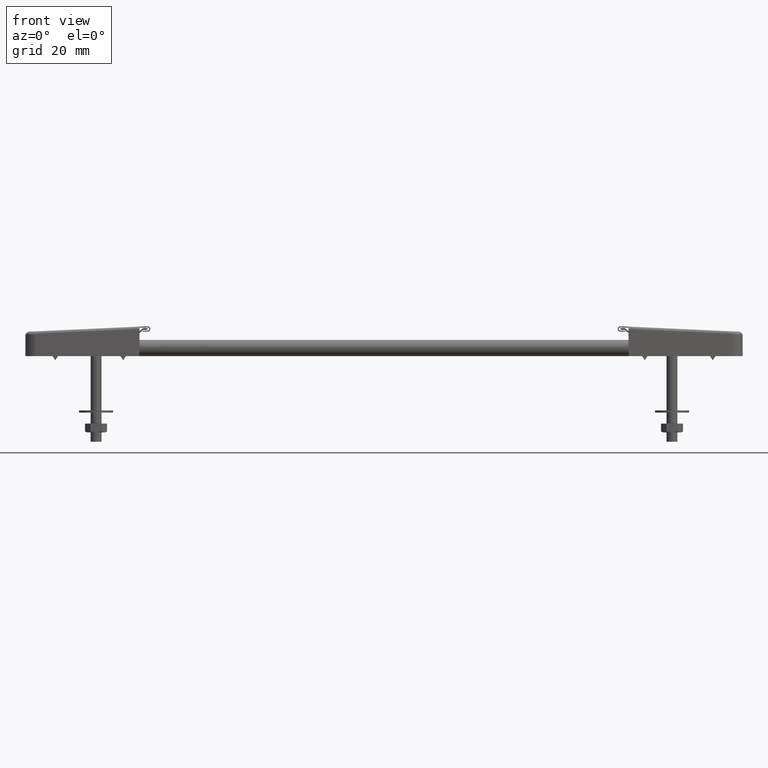
[diagram: clean part render]
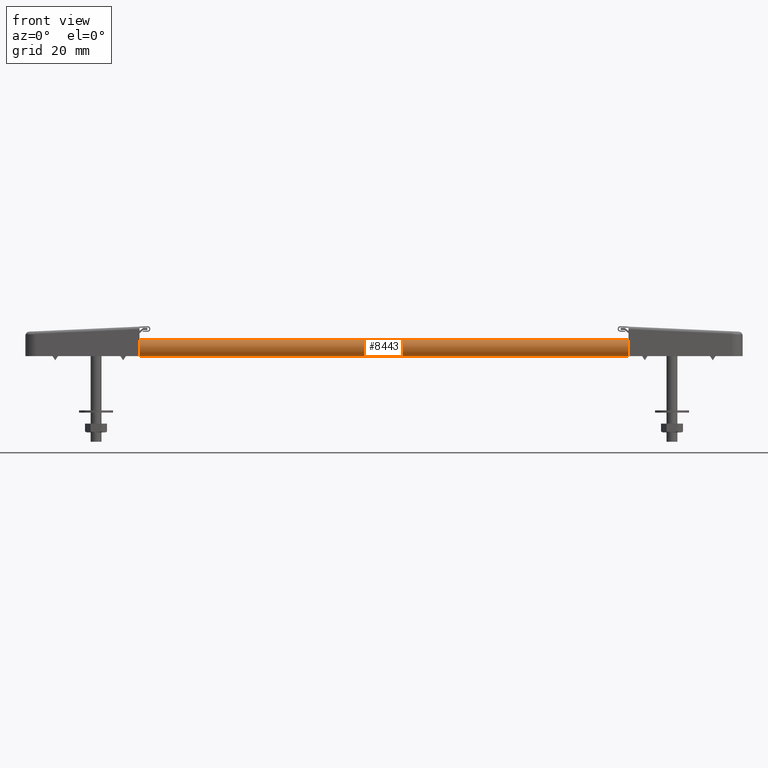
[diagram: same view with one face highlighted and labeled with its STEP entity id]
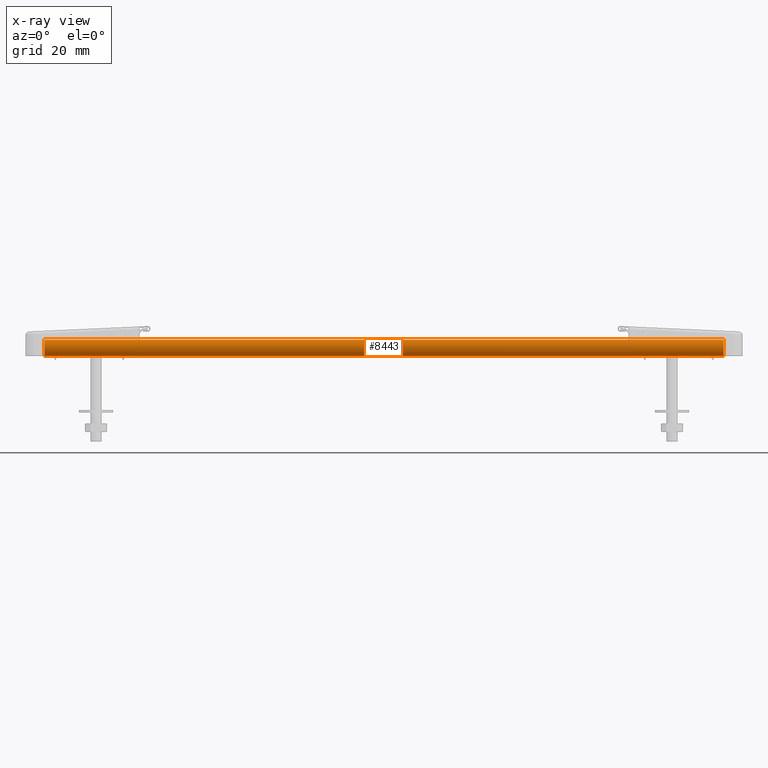
[diagram: x-ray of the same camera — body ghosted, the highlighted face saturated]
A machine part, front view. The second image highlights one B-rep face of the part: STEP entity #8443.
The next image is the same camera in x-ray: the body ghosted, the highlighted face saturated — about 0% of this face is hidden behind the body in this view.
In plain terms, the highlighted face is a freeform B-spline surface patch.
Its self-contained STEP definition (entity closure, byte-faithful):
#8230=CARTESIAN_POINT('',(125.0,-9.500000000000000,6.0));
#8231=VERTEX_POINT('',#8230);
#8237=CARTESIAN_POINT('',(125.0,-12.499999999994619,2.999994317854533));
#8238=VERTEX_POINT('',#8237);
#8239=CARTESIAN_POINT('',(125.0,-9.500000000000000,6.0));
#8240=CARTESIAN_POINT('',(125.0,-9.819092871208982,6.000184407551927));
#8241=CARTESIAN_POINT('',(125.000000000000200,-10.334380617687080,5.916946397580858));
#8242=CARTESIAN_POINT('',(125.000000000000100,-11.078443530533569,5.587185072356928));
#8243=CARTESIAN_POINT('',(124.999999999999600,-11.645636789704300,5.144562803625894));
#8244=CARTESIAN_POINT('',(125.000000000000700,-12.124127207479370,4.515641851488775));
#8245=CARTESIAN_POINT('',(125.000000000000100,-12.426649509174180,3.809919942297323));
#8246=CARTESIAN_POINT('',(124.999999999999010,-12.500083689322230,3.269977002642019));
#8247=CARTESIAN_POINT('',(125.0,-12.499999999994619,2.999994317854533));
#8248=B_SPLINE_CURVE_WITH_KNOTS('',3,(#8239,#8240,#8241,#8242,#8243,#8244,#8245,#8246,#8247),.UNSPECIFIED.,.F.,.U.,(4,1,1,1,1,1,4),(0.000000648695763,0.957224628681463,1.546301262067815,2.429792267620569,3.092550144370457,3.902561094553747,4.712510435729850),.UNSPECIFIED.);
#8249=EDGE_CURVE('',#8231,#8238,#8248,.T.);
#8251=CARTESIAN_POINT('',(125.0,-9.500000000000000,0.0));
#8252=VERTEX_POINT('',#8251);
#8253=CARTESIAN_POINT('',(125.0,-12.499999999994619,2.999994317854533));
#8254=CARTESIAN_POINT('',(124.999999999999900,-12.500183645636440,2.680904753426131));
#8255=CARTESIAN_POINT('',(125.000000000000100,-12.412999024894271,2.141053257060650));
#8256=CARTESIAN_POINT('',(125.0,-12.094177813546640,1.445062401967610));
#8257=CARTESIAN_POINT('',(124.999999999999700,-11.645648896086410,0.855421681210853));
#8258=CARTESIAN_POINT('',(125.000000000000700,-11.078439394641309,0.412816537013331));
#8259=CARTESIAN_POINT('',(124.999999999999200,-10.334383899966790,0.083036307783577));
#8260=CARTESIAN_POINT('',(125.000000000001290,-9.819086080201046,-0.000172531898833));
#8261=CARTESIAN_POINT('',(125.0,-9.500000000000000,0.0));
#8262=B_SPLINE_CURVE_WITH_KNOTS('',3,(#8253,#8254,#8255,#8256,#8257,#8258,#8259,#8260,#8261),.UNSPECIFIED.,.F.,.U.,(4,1,1,1,1,1,4),(0.000000656451484,0.957223333010083,1.619961504824982,2.282714275836194,3.166200602598209,3.755286761619208,4.712504030467768),.UNSPECIFIED.);
#8263=EDGE_CURVE('',#8238,#8252,#8262,.T.);
#8336=CARTESIAN_POINT('',(-125.0,-9.500000000000000,0.0));
#8337=VERTEX_POINT('',#8336);
#8343=CARTESIAN_POINT('',(-125.0,-12.499999999994619,2.999994317854533));
#8344=VERTEX_POINT('',#8343);
#8345=CARTESIAN_POINT('',(-125.0,-12.499999999994619,2.999994317854533));
#8346=CARTESIAN_POINT('',(-124.999999999999900,-12.500183645636440,2.680904753426131));
#8347=CARTESIAN_POINT('',(-125.000000000000100,-12.412999024894271,2.141053257060650));
#8348=CARTESIAN_POINT('',(-125.0,-12.094177813546640,1.445062401967610));
#8349=CARTESIAN_POINT('',(-124.999999999999700,-11.645648896086410,0.855421681210853));
#8350=CARTESIAN_POINT('',(-125.000000000000700,-11.078439394641309,0.412816537013331));
#8351=CARTESIAN_POINT('',(-124.999999999999200,-10.334383899966790,0.083036307783577));
#8352=CARTESIAN_POINT('',(-125.000000000001290,-9.819086080201046,-0.000172531898833));
#8353=CARTESIAN_POINT('',(-125.0,-9.500000000000000,0.0));
#8354=B_SPLINE_CURVE_WITH_KNOTS('',3,(#8345,#8346,#8347,#8348,#8349,#8350,#8351,#8352,#8353),.UNSPECIFIED.,.F.,.U.,(4,1,1,1,1,1,4),(0.000000656451484,0.957223333010083,1.619961504824982,2.282714275836194,3.166200602598209,3.755286761619208,4.712504030467768),.UNSPECIFIED.);
#8355=EDGE_CURVE('',#8344,#8337,#8354,.T.);
#8357=CARTESIAN_POINT('',(-125.0,-9.500000000000000,6.0));
#8358=VERTEX_POINT('',#8357);
#8359=CARTESIAN_POINT('',(-125.0,-9.500000000000000,6.0));
#8360=CARTESIAN_POINT('',(-125.0,-9.819092871208982,6.000184407551927));
#8361=CARTESIAN_POINT('',(-125.000000000000200,-10.334380617687080,5.916946397580858));
#8362=CARTESIAN_POINT('',(-125.000000000000100,-11.078443530533569,5.587185072356928));
#8363=CARTESIAN_POINT('',(-124.999999999999600,-11.645636789704300,5.144562803625894));
#8364=CARTESIAN_POINT('',(-125.000000000000700,-12.124127207479370,4.515641851488775));
#8365=CARTESIAN_POINT('',(-125.000000000000100,-12.426649509174180,3.809919942297323));
#8366=CARTESIAN_POINT('',(-124.999999999999010,-12.500083689322230,3.269977002642019));
#8367=CARTESIAN_POINT('',(-125.0,-12.499999999994619,2.999994317854533));
#8368=B_SPLINE_CURVE_WITH_KNOTS('',3,(#8359,#8360,#8361,#8362,#8363,#8364,#8365,#8366,#8367),.UNSPECIFIED.,.F.,.U.,(4,1,1,1,1,1,4),(0.000000648695763,0.957224628681463,1.546301262067815,2.429792267620569,3.092550144370457,3.902561094553747,4.712510435729850),.UNSPECIFIED.);
#8369=EDGE_CURVE('',#8358,#8344,#8368,.T.);
#8409=CARTESIAN_POINT('',(-131.250000000000000,-9.421469155076377,0.001028025073329));
#8410=CARTESIAN_POINT('',(131.406250000000000,-9.421469155076377,0.001028025073329));
#8411=CARTESIAN_POINT('',(-131.250000000000000,-12.581726218528697,-0.081726218528706));
#8412=CARTESIAN_POINT('',(131.406250000000000,-12.581726218528697,-0.081726218528706));
#8413=CARTESIAN_POINT('',(-131.250000000000000,-12.498971974926670,3.078530844923616));
#8414=CARTESIAN_POINT('',(131.406250000000000,-12.498971974926670,3.078530844923616));
#8415=CARTESIAN_POINT('',(-131.250000000000000,-12.416217731324647,6.238787908375940));
#8416=CARTESIAN_POINT('',(131.406250000000000,-12.416217731324647,6.238787908375940));
#8417=CARTESIAN_POINT('',(-131.250000000000000,-9.264622712816468,5.990752001199384));
#8418=CARTESIAN_POINT('',(131.406250000000000,-9.264622712816468,5.990752001199384));
#8426=(BOUNDED_SURFACE()B_SPLINE_SURFACE(1,2,((#8409,#8411,#8413,#8415,#8417),(#8410,#8412,#8414,#8416,#8418)),.UNSPECIFIED.,.F.,.F.,.U.)B_SPLINE_SURFACE_WITH_KNOTS((2,2),(3,2,3),(0.0,262.656250000000000),(0.0,5.155606871602034,10.311213743204069),.UNSPECIFIED.)GEOMETRIC_REPRESENTATION_ITEM()RATIONAL_B_SPLINE_SURFACE(((1.0,0.688354575693754,1.0,0.688354575693754,1.0),(1.0,0.688354575693754,1.0,0.688354575693754,1.0)))REPRESENTATION_ITEM('')SURFACE());
#8427=ORIENTED_EDGE('',*,*,#8263,.F.);
#8428=ORIENTED_EDGE('',*,*,#8249,.F.);
#8429=CARTESIAN_POINT('',(-125.0,-9.500000000000000,6.0));
#8430=CARTESIAN_POINT('',(125.0,-9.500000000000000,6.0));
#8431=QUASI_UNIFORM_CURVE('',1,(#8429,#8430),.UNSPECIFIED.,.F.,.U.);
#8432=EDGE_CURVE('',#8358,#8231,#8431,.T.);
#8433=ORIENTED_EDGE('',*,*,#8432,.F.);
#8434=ORIENTED_EDGE('',*,*,#8369,.T.);
#8435=ORIENTED_EDGE('',*,*,#8355,.T.);
#8436=CARTESIAN_POINT('',(-125.0,-9.500000000000000,0.0));
#8437=CARTESIAN_POINT('',(125.0,-9.500000000000000,0.0));
#8438=QUASI_UNIFORM_CURVE('',1,(#8436,#8437),.UNSPECIFIED.,.F.,.U.);
#8439=EDGE_CURVE('',#8337,#8252,#8438,.T.);
#8440=ORIENTED_EDGE('',*,*,#8439,.T.);
#8441=EDGE_LOOP('',(#8427,#8428,#8433,#8434,#8435,#8440));
#8442=FACE_OUTER_BOUND('',#8441,.T.);
#8443=ADVANCED_FACE('',(#8442),#8426,.T.);